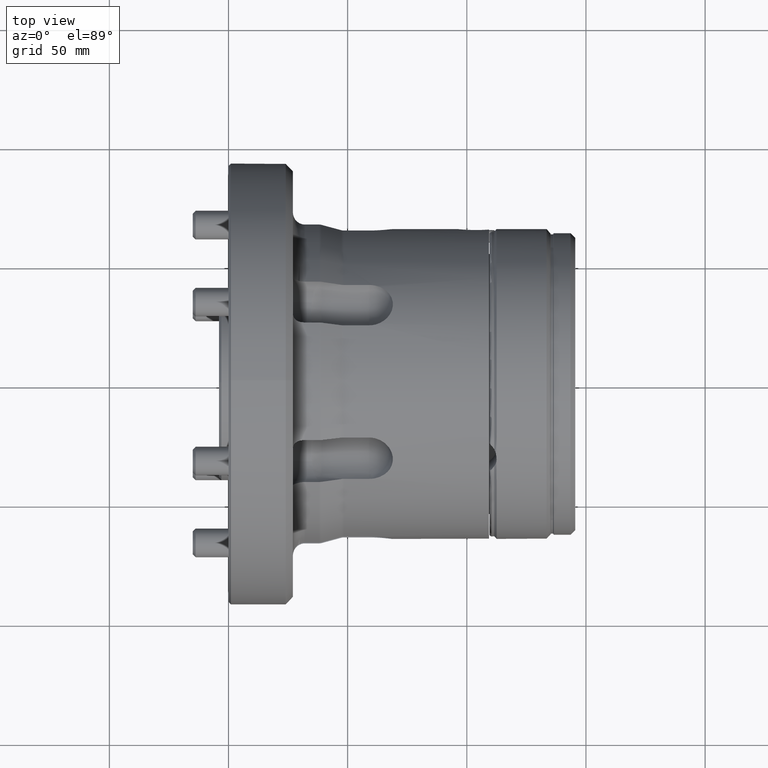
[diagram: clean part render]
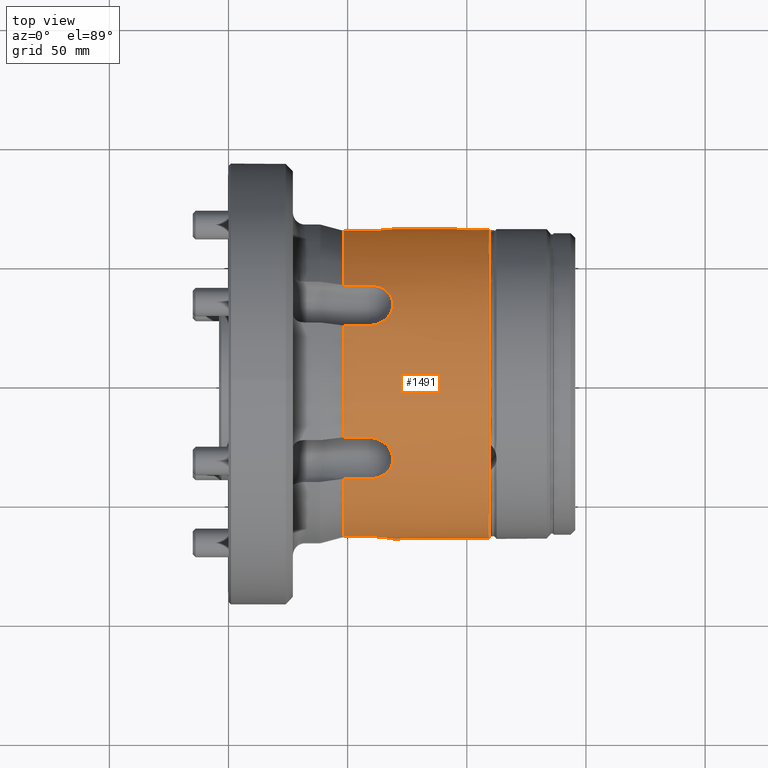
[diagram: same view with one face highlighted and labeled with its STEP entity id]
A machine part, top view. The second image highlights one B-rep face of the part: STEP entity #1491.
In plain terms, the highlighted cylindrical surface (bore or boss wall) has radius 65 mm, axis along (-1, -0, -0).
Its self-contained STEP definition (entity closure, byte-faithful):
#30 = CARTESIAN_POINT ( 'NONE',  ( 68.46673123854780840, -35.22863532441204626, 54.62880162473060608 ) ) ;
#40 = CARTESIAN_POINT ( 'NONE',  ( 96.64563253241986729, 64.89220520660516911, -3.759045072460699632 ) ) ;
#57 = LINE ( 'NONE', #2471, #1069 ) ;
#60 = CARTESIAN_POINT ( 'NONE',  ( 48.22508451168435784, -23.55354716522348113, -60.58242662633772113 ) ) ;
#66 = CARTESIAN_POINT ( 'NONE',  ( 62.21223775799929001, -40.29238092158717421, 51.00574314181611868 ) ) ;
#75 = CARTESIAN_POINT ( 'NONE',  ( 103.5111300385479325, 64.47499885865750002, -8.244667661512012913 ) ) ;
#125 = VERTEX_POINT ( 'NONE', #6771 ) ;
#129 = CARTESIAN_POINT ( 'NONE',  ( 59.65736766659580326, -40.68914689870398860, -50.68918350748695900 ) ) ;
#131 = CARTESIAN_POINT ( 'NONE',  ( 63.41394487982361738, -64.38819753321324413, 8.900664053594999459 ) ) ;
#176 = CARTESIAN_POINT ( 'NONE',  ( 67.63669956453722421, -36.71106175595033960, -53.64121753617897070 ) ) ;
#177 = CARTESIAN_POINT ( 'NONE',  ( 65.08023314348233157, 39.08348661089601705, -51.93852370329219781 ) ) ;
#178 = CARTESIAN_POINT ( 'NONE',  ( 68.71728005003491546, -64.96127369140641861, 2.266295681143389196 ) ) ;
#181 = CARTESIAN_POINT ( 'NONE',  ( 59.00000000000001421, 64.24269406392694748, 9.893243118850675089 ) ) ;
#207 = CARTESIAN_POINT ( 'NONE',  ( 68.46673123854780840, -29.69561232311103183, -57.82329394396411715 ) ) ;
#209 = CARTESIAN_POINT ( 'NONE',  ( 66.92883069469651502, -64.72013312958506503, -6.049300496260029192 ) ) ;
#212 = CARTESIAN_POINT ( 'NONE',  ( 59.00000000000001421, -40.68914689870326384, 50.68918350748751322 ) ) ;
#214 = EDGE_CURVE ( 'NONE', #7549, #3518, #7249, .T. ) ;
#219 = CARTESIAN_POINT ( 'NONE',  ( 59.65736766659581747, 64.24269406392696169, -9.893243118850673312 ) ) ;
#245 = CARTESIAN_POINT ( 'NONE',  ( 62.21223775799928291, -24.02607883892278906, -60.39709702796209712 ) ) ;
#252 = CARTESIAN_POINT ( 'NONE',  ( 67.63669956453723842, 64.81018795423349843, -4.972103312462566649 ) ) ;
#286 = CARTESIAN_POINT ( 'NONE',  ( 49.00000000000000711, 64.24269406392694748, -9.893243118850675089 ) ) ;
#292 = CARTESIAN_POINT ( 'NONE',  ( 68.65574458489963661, 64.95210880938056164, 2.574995882156009941 ) ) ;
#332 = CARTESIAN_POINT ( 'NONE',  ( 63.11580429483066013, 64.37092184377949877, 9.022187618689404331 ) ) ;
#409 = VECTOR ( 'NONE', #2693, 1000.000000000000000 ) ;
#450 = CARTESIAN_POINT ( 'NONE',  ( 109.3000000000000114, 0.0000000000000000000, 0.0000000000000000000 ) ) ;
#458 = EDGE_CURVE ( 'NONE', #1035, #6021, #5547, .T. ) ;
#479 = CARTESIAN_POINT ( 'NONE',  ( 68.97489981005446680, 31.93052054282873087, -56.62034041198526779 ) ) ;
#502 = B_SPLINE_CURVE_WITH_KNOTS ( 'NONE', 3,
 ( #5366, #7818, #2371, #4759, #7208, #1790, #4167, #6598, #1194, #3574, #6007, #588, #2976, #5406, #7854, #2405, #4798, #7250, #1829, #4206, #6639, #1232, #3607, #6044, #629, #3016, #5446, #30, #2448, #4843, #7285, #1865, #4245, #6677, #1275, #3647, #6084, #675, #3061, #5492, #66, #2480, #4880, #7325, #1903 ),
 .UNSPECIFIED., .F., .F.,
 ( 4, 2, 2, 2, 2, 2, 2, 2, 1, 2, 2, 2, 2, 2, 2, 2, 2, 2, 2, 2, 2, 2, 4 ),
 ( 1.971623596299978614E-07, 0.001944322876846590626, 0.002916385734090080461, 0.003888448591333569862, 0.005832574305820511368, 0.007776700020307452874, 0.009720825734794394379, 0.01069288859203786080, 0.01166495144928132548, 0.01263701430652479363, 0.01360907716376826004, 0.01555320287825521022, 0.01652526573549866970, 0.01749732859274212918, 0.01944145430722905160, 0.02041351716447251455, 0.02138558002171597749, 0.02332970573620291380, 0.02527383145068985704, 0.02624589430793334080, 0.02721795716517683150, 0.02916208287966373311, 0.03110620859415063125 ),
 .UNSPECIFIED. ) ;
#515 = CARTESIAN_POINT ( 'NONE',  ( 65.06961659763658190, 25.43077627880670732, -59.81976931337305103 ) ) ;
#566 = CARTESIAN_POINT ( 'NONE',  ( 105.4635260554162244, 64.48977235927469565, 8.128461432282648502 ) ) ;
#582 = CARTESIAN_POINT ( 'NONE',  ( 48.22508451168435784, 40.68914689870363333, -50.68918350748725032 ) ) ;
#588 = CARTESIAN_POINT ( 'NONE',  ( 66.50440227982637964, -26.65302962617077043, 59.28596243187008952 ) ) ;
#599 = CARTESIAN_POINT ( 'NONE',  ( 98.26636466960044913, 64.72810096608738206, 5.944700541047105879 ) ) ;
#618 = EDGE_CURVE ( 'NONE', #1128, #6720, #5082, .T. ) ;
#629 = CARTESIAN_POINT ( 'NONE',  ( 68.89582400938070350, -33.61415995071007501, 55.63447366400265537 ) ) ;
#640 = CARTESIAN_POINT ( 'NONE',  ( 95.96965243581777827, 64.97239724917686488, -1.930489556062061851 ) ) ;
#673 = VECTOR ( 'NONE', #3872, 1000.000000000000000 ) ;
#675 = CARTESIAN_POINT ( 'NONE',  ( 63.99118382509233527, -39.64480229942511613, 51.51032223774080165 ) ) ;
#683 = VECTOR ( 'NONE', #1904, 1000.000000000000000 ) ;
#685 = CARTESIAN_POINT ( 'NONE',  ( 101.2132907289481665, 64.53063381459492120, -7.804395639396867423 ) ) ;
#690 = EDGE_LOOP ( 'NONE', ( #3906, #3930 ) ) ;
#712 = CARTESIAN_POINT ( 'NONE',  ( 59.00000000000001421, 64.24269406392694748, -9.893243118850675089 ) ) ;
#719 = CARTESIAN_POINT ( 'NONE',  ( 48.22508451168435784, 0.0000000000000000000, 0.0000000000000000000 ) ) ;
#720 = CARTESIAN_POINT ( 'NONE',  ( 108.9987305425598834, 64.66710642170700396, -6.574932594090044269 ) ) ;
#731 = EDGE_LOOP ( 'NONE', ( #3276, #3310, #3339, #3347, #3358, #3368, #3389, #3399, #3411, #3423, #3444, #3466, #3472, #3501, #3526, #3543, #3569, #3581, #3641, #3653, #3755, #3784, #3848, #3858 ) ) ;
#736 = CARTESIAN_POINT ( 'NONE',  ( 61.57308175620754298, -64.29233641987430303, 9.565790955121123318 ) ) ;
#769 = EDGE_CURVE ( 'NONE', #125, #1737, #3886, .T. ) ;
#772 = CARTESIAN_POINT ( 'NONE',  ( 66.50440227982636543, -38.01663474072373106, -52.72518196001837509 ) ) ;
#773 = CARTESIAN_POINT ( 'NONE',  ( 63.41405891017797103, 39.88807841670730170, -51.32216720501003948 ) ) ;
#774 = CARTESIAN_POINT ( 'NONE',  ( 68.33532271160474636, -64.90580392480578098, 3.510835767199113278 ) ) ;
#778 = VERTEX_POINT ( 'NONE', #3865 ) ;
#814 = CARTESIAN_POINT ( 'NONE',  ( 68.89582400938070350, -31.37378754384732105, -56.92795327618985368 ) ) ;
#815 = CARTESIAN_POINT ( 'NONE',  ( 68.84728663376772317, 33.89191091364965303, -55.46566627442530262 ) ) ;
#816 = CARTESIAN_POINT ( 'NONE',  ( 67.94888035252709813, -64.85196740066564303, -4.393751559145941066 ) ) ;
#845 = CARTESIAN_POINT ( 'NONE',  ( 63.99118382509233527, -24.78684646529319124, -60.08856703818438660 ) ) ;
#846 = CARTESIAN_POINT ( 'NONE',  ( 60.31550699776791191, -64.25276451602412919, -9.828449309156413349 ) ) ;
#857 = CARTESIAN_POINT ( 'NONE',  ( 66.50440227982636543, 64.66966436689480702, -6.560780471851299644 ) ) ;
#867 = LINE ( 'NONE', #3253, #3630 ) ;
#893 = CARTESIAN_POINT ( 'NONE',  ( 68.96007476072135489, 64.99765644748399041, 0.6411438195665333240 ) ) ;
#902 = VERTEX_POINT ( 'NONE', #3536 ) ;
#908 = LINE ( 'NONE', #3295, #2276 ) ;
#918 = AXIS2_PLACEMENT_3D ( 'NONE', #1410, #1398, #1387 ) ;
#939 = CARTESIAN_POINT ( 'NONE',  ( 64.27033548075797853, 64.45352781201887638, 8.412790566791175095 ) ) ;
#953 = DIRECTION ( 'NONE',  ( 0.0000000000000000000, 0.0000000000000000000, 1.000000000000000000 ) ) ;
#964 = DIRECTION ( 'NONE',  ( -1.000000000000000000, -0.0000000000000000000, -0.0000000000000000000 ) ) ;
#971 = CARTESIAN_POINT ( 'NONE',  ( 0.0000000000000000000, 0.0000000000000000000, 0.0000000000000000000 ) ) ;
#979 = CYLINDRICAL_SURFACE ( 'NONE', #2194, 65.00000000000000000 ) ;
#982 = FACE_OUTER_BOUND ( 'NONE', #690, .T. ) ;
#988 = FACE_OUTER_BOUND ( 'NONE', #731, .T. ) ;
#1006 = CIRCLE ( 'NONE', #5421, 65.00000000000000000 ) ;
#1035 = VERTEX_POINT ( 'NONE', #3275 ) ;
#1061 = VECTOR ( 'NONE', #1754, 1000.000000000000000 ) ;
#1069 = VECTOR ( 'NONE', #4869, 1000.000000000000000 ) ;
#1097 = CARTESIAN_POINT ( 'NONE',  ( 48.22508451168435784, 40.68914689870434387, 50.68918350748667478 ) ) ;
#1122 = CARTESIAN_POINT ( 'NONE',  ( 66.91797617654580677, 27.10794172047150496, -59.08005991271858193 ) ) ;
#1128 = VERTEX_POINT ( 'NONE', #2511 ) ;
#1137 = CARTESIAN_POINT ( 'NONE',  ( 59.00000000000001421, -64.24269406392694748, 9.893243118850675089 ) ) ;
#1164 = CARTESIAN_POINT ( 'NONE',  ( 106.9662316249395531, 64.54152651248084283, 7.708205984019353529 ) ) ;
#1194 = CARTESIAN_POINT ( 'NONE',  ( 63.98620588425183087, -24.76768970362120115, 60.09734378151021872 ) ) ;
#1205 = CARTESIAN_POINT ( 'NONE',  ( 99.81934832659638346, 64.60889526454616316, 7.122954833727360047 ) ) ;
#1232 = CARTESIAN_POINT ( 'NONE',  ( 68.97489981005446680, -31.93052054282832941, 56.62034041198548096 ) ) ;
#1241 = CARTESIAN_POINT ( 'NONE',  ( 95.74964363085314289, 65.00004523144957602, -0.3819330405485822366 ) ) ;
#1275 = CARTESIAN_POINT ( 'NONE',  ( 65.58369074559914225, -38.75527925615264024, 52.18469942478206747 ) ) ;
#1283 = CARTESIAN_POINT ( 'NONE',  ( 99.15602684318761817, 64.65521208906687889, -6.689495352922332216 ) ) ;
#1330 = CARTESIAN_POINT ( 'NONE',  ( 107.6665159727782850, 64.57750852762833915, -7.400677022700478780 ) ) ;
#1348 = CARTESIAN_POINT ( 'NONE',  ( 59.65736766659581747, -64.24269406392696169, 9.893243118850673312 ) ) ;
#1357 = EDGE_CURVE ( 'NONE', #6720, #2144, #1772, .T. ) ;
#1381 = CARTESIAN_POINT ( 'NONE',  ( 63.98620588425181666, -39.66198156294375821, -51.49812036714151731 ) ) ;
#1382 = CARTESIAN_POINT ( 'NONE',  ( 61.59191015603111907, 40.43930686144677367, -50.88888507660636407 ) ) ;
#1383 = CARTESIAN_POINT ( 'NONE',  ( 67.63669956453723842, -64.81018795423349843, 4.972103312462566649 ) ) ;
#1387 = DIRECTION ( 'NONE',  ( 0.0000000000000000000, 0.0000000000000000000, 1.000000000000000000 ) ) ;
#1398 = DIRECTION ( 'NONE',  ( -1.000000000000000000, -0.0000000000000000000, -0.0000000000000000000 ) ) ;
#1403 = EDGE_CURVE ( 'NONE', #6753, #1711, #2304, .T. ) ;
#1410 = CARTESIAN_POINT ( 'NONE',  ( 48.22508451168435784, 0.0000000000000000000, 0.0000000000000000000 ) ) ;
#1419 = CARTESIAN_POINT ( 'NONE',  ( 68.97489981005442417, -33.06939289628767398, -55.96281215214310834 ) ) ;
#1420 = CARTESIAN_POINT ( 'NONE',  ( 68.09065440962528726, 35.98327840764938657, -54.13219331859035321 ) ) ;
#1421 = CARTESIAN_POINT ( 'NONE',  ( 68.65574458489963661, -64.95210880938056164, -2.574995882156009941 ) ) ;
#1442 = CARTESIAN_POINT ( 'NONE',  ( 59.00000000000001421, -64.24269406392694748, -9.893243118850675089 ) ) ;
#1459 = CARTESIAN_POINT ( 'NONE',  ( 48.22508451168435784, -23.55354716522263558, 60.58242662633805509 ) ) ;
#1460 = CARTESIAN_POINT ( 'NONE',  ( 65.58369074559912804, -25.81563576263987159, -59.65540607897940362 ) ) ;
#1461 = CARTESIAN_POINT ( 'NONE',  ( 63.11580429483066013, -64.37092184377949877, -9.022187618689404331 ) ) ;
#1467 = CARTESIAN_POINT ( 'NONE',  ( 63.98620588425183087, 64.42967126656529331, -8.599223414368282192 ) ) ;
#1483 = VERTEX_POINT ( 'NONE', #1137 ) ;
#1491 = ADVANCED_FACE ( 'NONE', ( #988, #982 ), #979, .T. ) ;
#1497 = CARTESIAN_POINT ( 'NONE',  ( 68.91097228024506194, 64.99011185281403868, -1.303097945448076889 ) ) ;
#1536 = CARTESIAN_POINT ( 'NONE',  ( 66.51481987590584311, 64.67082014766347697, 6.549774477475294177 ) ) ;
#1549 = CARTESIAN_POINT ( 'NONE',  ( 49.00000000000000711, -40.68914689870396728, -50.68918350748695190 ) ) ;
#1581 = DIRECTION ( 'NONE',  ( 1.000000000000000000, -0.0000000000000000000, 0.0000000000000000000 ) ) ;
#1629 = VERTEX_POINT ( 'NONE', #212 ) ;
#1641 = VERTEX_POINT ( 'NONE', #181 ) ;
#1643 = VECTOR ( 'NONE', #1581, 1000.000000000000000 ) ;
#1711 = VERTEX_POINT ( 'NONE', #5073 ) ;
#1725 = CARTESIAN_POINT ( 'NONE',  ( 67.94577678334357529, 28.61532396803437450, -58.36304916826493638 ) ) ;
#1737 = VERTEX_POINT ( 'NONE', #2207 ) ;
#1754 = DIRECTION ( 'NONE',  ( -1.000000000000000000, 0.0000000000000000000, -0.0000000000000000000 ) ) ;
#1759 = CARTESIAN_POINT ( 'NONE',  ( 61.25774261777939955, 23.78901311887291214, -60.49038607993566075 ) ) ;
#1762 = CARTESIAN_POINT ( 'NONE',  ( 109.3000000000000114, 64.69178850518821378, 6.322380880649324020 ) ) ;
#1766 = CARTESIAN_POINT ( 'NONE',  ( 49.00000000000000711, 23.55354716522390390, 60.58242662633755060 ) ) ;
#1772 = LINE ( 'NONE', #1766, #1061 ) ;
#1790 = CARTESIAN_POINT ( 'NONE',  ( 62.19836298140091913, -24.03714762665542892, 60.39225457703783917 ) ) ;
#1800 = LINE ( 'NONE', #4180, #2143 ) ;
#1801 = CARTESIAN_POINT ( 'NONE',  ( 101.2283847577835445, 64.53276998607843495, 7.780410865472194182 ) ) ;
#1829 = CARTESIAN_POINT ( 'NONE',  ( 68.63643386325357199, -30.23611273858649184, 57.54019666087459939 ) ) ;
#1843 = CARTESIAN_POINT ( 'NONE',  ( 95.88843881038555139, 64.98255099181781702, 1.554459076210388035 ) ) ;
#1865 = CARTESIAN_POINT ( 'NONE',  ( 67.47145547738993798, -36.93651640627602717, 53.48613065992171300 ) ) ;
#1872 = CARTESIAN_POINT ( 'NONE',  ( 59.00000000000001421, 23.55354716522390390, 60.58242662633755060 ) ) ;
#1874 = CARTESIAN_POINT ( 'NONE',  ( 97.98609172158090530, 64.75369306091425869, -5.661076971302386518 ) ) ;
#1903 = CARTESIAN_POINT ( 'NONE',  ( 59.00000000000001421, -40.68914689870326384, 50.68918350748751322 ) ) ;
#1904 = DIRECTION ( 'NONE',  ( -1.000000000000000000, 0.0000000000000000000, 0.0000000000000000000 ) ) ;
#1908 = CARTESIAN_POINT ( 'NONE',  ( 48.22508451168435784, -64.24269406392696169, 9.893243118850678641 ) ) ;
#1909 = CARTESIAN_POINT ( 'NONE',  ( 105.8382525775383272, 64.49942468025807329, -8.052038696147144847 ) ) ;
#1963 = CARTESIAN_POINT ( 'NONE',  ( 59.00000000000001421, -23.55354716522347402, -60.58242662633771403 ) ) ;
#1968 = CARTESIAN_POINT ( 'NONE',  ( 62.19836298140091913, -40.28265284220385212, -51.01290776771955393 ) ) ;
#1969 = CARTESIAN_POINT ( 'NONE',  ( 59.00000000000001421, 40.68914689870362622, -50.68918350748724322 ) ) ;
#1971 = CARTESIAN_POINT ( 'NONE',  ( 66.50440227982636543, -64.66966436689480702, 6.560780471851299644 ) ) ;
#1988 = DIRECTION ( 'NONE',  ( -1.000000000000000000, 0.0000000000000000000, 0.0000000000000000000 ) ) ;
#2000 = CARTESIAN_POINT ( 'NONE',  ( 68.63643386325358620, -34.71321567777644646, -54.95534007374363483 ) ) ;
#2001 = CARTESIAN_POINT ( 'NONE',  ( 67.47145547738993798, 36.93651640627639665, -53.48613065992145010 ) ) ;
#2002 = CARTESIAN_POINT ( 'NONE',  ( 68.96007476072135489, -64.99765644748399041, -0.6411438195665333240 ) ) ;
#2036 = DIRECTION ( 'NONE',  ( -1.000000000000000000, -0.0000000000000000000, -0.0000000000000000000 ) ) ;
#2037 = CARTESIAN_POINT ( 'NONE',  ( 67.47145547738993798, -27.85208969848766003, -58.73102686509675152 ) ) ;
#2038 = CARTESIAN_POINT ( 'NONE',  ( 64.27033548075797853, -64.45352781201887638, -8.412790566791175095 ) ) ;
#2048 = CARTESIAN_POINT ( 'NONE',  ( 62.19836298140090491, 64.31980046885958302, -9.379346809317894440 ) ) ;
#2084 = CARTESIAN_POINT ( 'NONE',  ( 59.00000000000001421, -23.55354716522347402, -60.58242662633771403 ) ) ;
#2091 = CARTESIAN_POINT ( 'NONE',  ( 68.44560733749149506, 64.92161639485036062, -3.206317200860421934 ) ) ;
#2103 = VERTEX_POINT ( 'NONE', #7513 ) ;
#2126 = CARTESIAN_POINT ( 'NONE',  ( 67.63940908486428327, 64.81054373074016439, 4.967509418845142299 ) ) ;
#2143 = VECTOR ( 'NONE', #6612, 1000.000000000000000 ) ;
#2144 = VERTEX_POINT ( 'NONE', #2792 ) ;
#2165 = CARTESIAN_POINT ( 'NONE',  ( 59.65737357469058821, 64.24269406392694748, 9.893243118850673312 ) ) ;
#2194 = AXIS2_PLACEMENT_3D ( 'NONE', #971, #964, #953 ) ;
#2207 = CARTESIAN_POINT ( 'NONE',  ( 59.00000000000001421, 23.55354716522305125, -60.58242662633787745 ) ) ;
#2208 = EDGE_CURVE ( 'NONE', #1737, #1035, #3920, .T. ) ;
#2276 = VECTOR ( 'NONE', #5732, 1000.000000000000000 ) ;
#2303 = CARTESIAN_POINT ( 'NONE',  ( 59.65736766659579615, 23.55354716522305480, -60.58242662633787745 ) ) ;
#2304 = CIRCLE ( 'NONE', #918, 65.00000000000000000 ) ;
#2323 = VERTEX_POINT ( 'NONE', #4429 ) ;
#2346 = CARTESIAN_POINT ( 'NONE',  ( 62.50926512417663616, 24.13993234231895713, -60.35129755896742410 ) ) ;
#2371 = CARTESIAN_POINT ( 'NONE',  ( 60.30380638227085655, -23.61340797102282707, 60.55925013631156872 ) ) ;
#2380 = CARTESIAN_POINT ( 'NONE',  ( 103.1270262955401478, 64.47908484597142831, 8.212866215661488667 ) ) ;
#2405 = CARTESIAN_POINT ( 'NONE',  ( 67.94577678334357529, -28.61532396803396949, 58.36304916826514244 ) ) ;
#2417 = CARTESIAN_POINT ( 'NONE',  ( 96.62203132733623079, 64.89373166331969855, 3.773925508976124998 ) ) ;
#2447 = CARTESIAN_POINT ( 'NONE',  ( 48.22508451168435784, 0.0000000000000000000, 0.0000000000000000000 ) ) ;
#2448 = CARTESIAN_POINT ( 'NONE',  ( 68.09065440962531568, -35.98327840764903129, 54.13219331859060190 ) ) ;
#2458 = CARTESIAN_POINT ( 'NONE',  ( 96.83125116509110342, 64.87130038087039452, -4.101458451329910382 ) ) ;
#2471 = CARTESIAN_POINT ( 'NONE',  ( 49.00000000000000711, -64.24269406392694748, 9.893243118850675089 ) ) ;
#2472 = CARTESIAN_POINT ( 'NONE',  ( 48.22508451168435784, 0.0000000000000000000, 0.0000000000000000000 ) ) ;
#2480 = CARTESIAN_POINT ( 'NONE',  ( 61.59191015603113328, -40.43930686144643261, 50.88888507660666249 ) ) ;
#2487 = CARTESIAN_POINT ( 'NONE',  ( 104.2883465605435447, 64.47379023854311697, -8.254113819727399104 ) ) ;
#2511 = CARTESIAN_POINT ( 'NONE',  ( 59.00000000000001421, 40.68914689870434387, 50.68918350748667478 ) ) ;
#2523 = DIRECTION ( 'NONE',  ( -1.000000000000000000, -0.0000000000000000000, -0.0000000000000000000 ) ) ;
#2544 = CARTESIAN_POINT ( 'NONE',  ( 60.30380638227083523, -40.63914506667039461, -50.72943624098768822 ) ) ;
#2547 = CARTESIAN_POINT ( 'NONE',  ( 63.98620588425183087, -64.42967126656529331, 8.599223414368282192 ) ) ;
#2580 = CARTESIAN_POINT ( 'NONE',  ( 67.94577678334357529, -36.23622123802064010, -53.96312207797189586 ) ) ;
#2581 = CARTESIAN_POINT ( 'NONE',  ( 65.58369074559914225, 38.75527925615298841, -52.18469942478180457 ) ) ;
#2582 = CARTESIAN_POINT ( 'NONE',  ( 68.91097228024506194, -64.99011185281403868, 1.303097945448076889 ) ) ;
#2612 = CARTESIAN_POINT ( 'NONE',  ( 68.09065440962532989, -28.88821537264493955, -58.22852987176755590 ) ) ;
#2613 = CARTESIAN_POINT ( 'NONE',  ( 66.51481987590584311, -64.67082014766347697, -6.549774477475294177 ) ) ;
#2622 = CARTESIAN_POINT ( 'NONE',  ( 60.30380638227082812, 64.25255303769353077, -9.829813895323466610 ) ) ;
#2647 = CARTESIAN_POINT ( 'NONE',  ( 61.59191015603113328, -23.85141381588467269, -60.46590959175038904 ) ) ;
#2657 = CARTESIAN_POINT ( 'NONE',  ( 67.94577678334358950, 64.85154520605490802, -4.399927090292832688 ) ) ;
#2693 = DIRECTION ( 'NONE',  ( 1.000000000000000000, 0.0000000000000000000, 0.0000000000000000000 ) ) ;
#2698 = CARTESIAN_POINT ( 'NONE',  ( 68.46673123854780840, 64.92424764752331612, 3.194492319233967592 ) ) ;
#2714 = EDGE_CURVE ( 'NONE', #2864, #2323, #3449, .T. ) ;
#2733 = CARTESIAN_POINT ( 'NONE',  ( 62.21223775799928291, 64.31845976051015157, 9.391353886146488250 ) ) ;
#2753 = AXIS2_PLACEMENT_3D ( 'NONE', #2472, #4870, #7314 ) ;
#2791 = AXIS2_PLACEMENT_3D ( 'NONE', #6534, #6522, #6513 ) ;
#2792 = CARTESIAN_POINT ( 'NONE',  ( 48.22508451168435784, 23.55354716522390390, 60.58242662633754350 ) ) ;
#2818 = VERTEX_POINT ( 'NONE', #1442 ) ;
#2837 = DIRECTION ( 'NONE',  ( -1.000000000000000000, -0.0000000000000000000, -0.0000000000000000000 ) ) ;
#2864 = VERTEX_POINT ( 'NONE', #3254 ) ;
#2906 = CARTESIAN_POINT ( 'NONE',  ( 63.98620588425184508, 24.76768970362161326, -60.09734378151006240 ) ) ;
#2947 = CARTESIAN_POINT ( 'NONE',  ( 104.6922644480614224, 64.47688004627886471, 8.230101075013523726 ) ) ;
#2976 = CARTESIAN_POINT ( 'NONE',  ( 66.91797617654579255, -27.10794172047109640, 59.08005991271878088 ) ) ;
#2987 = CARTESIAN_POINT ( 'NONE',  ( 97.99378067397420011, 64.75298348389966918, 5.669072151051521402 ) ) ;
#3009 = CARTESIAN_POINT ( 'NONE',  ( 48.22508451168435784, 64.24269406392696169, 9.893243118850678641 ) ) ;
#3016 = CARTESIAN_POINT ( 'NONE',  ( 68.84728663376769475, -33.89191091364925512, 55.46566627442551578 ) ) ;
#3027 = CARTESIAN_POINT ( 'NONE',  ( 96.18647019090279571, 64.94595576616706012, -2.676195779456556068 ) ) ;
#3061 = CARTESIAN_POINT ( 'NONE',  ( 63.41405891017794261, -39.88807841670692511, 51.32216720501029528 ) ) ;
#3066 = CARTESIAN_POINT ( 'NONE',  ( 101.9554376098558492, 64.50205643069854489, -8.031160337943987315 ) ) ;
#3073 = B_SPLINE_CURVE_WITH_KNOTS ( 'NONE', 3,
 ( #5553, #129, #2544, #4955, #7397, #1968, #4348, #6778, #1381, #3758, #6185, #772, #3160, #5600, #176, #2580, #4991, #7433, #2000, #4387, #6821, #1419, #3797, #6228, #814, #3201, #5631, #207, #2612, #5023, #7473, #2037, #4425, #6864, #1460, #3833, #6263, #845, #3233, #5666, #245, #2647, #5064, #7516, #2084 ),
 .UNSPECIFIED., .F., .F.,
 ( 4, 2, 2, 2, 2, 2, 2, 2, 1, 2, 2, 2, 2, 2, 2, 2, 2, 2, 2, 2, 2, 2, 4 ),
 ( 1.971623596295295052E-07, 0.001944322876846622502, 0.002916385734090109951, 0.003888448591333598051, 0.005832574305820535654, 0.007776700020307473690, 0.009720825734794411727, 0.01069288859203787814, 0.01166495144928134456, 0.01263701430652481097, 0.01360907716376827913, 0.01555320287825523104, 0.01652526573549870439, 0.01749732859274217428, 0.01944145430722911058, 0.02041351716447257700, 0.02138558002171603994, 0.02332970573620297278, 0.02527383145068990561, 0.02624589430793338937, 0.02721795716517687314, 0.02916208287966375393, 0.03110620859415063819 ),
 .UNSPECIFIED. ) ;
#3103 = CARTESIAN_POINT ( 'NONE',  ( 109.3000000000000114, 64.69178850518821378, -6.322380880649324020 ) ) ;
#3123 = CARTESIAN_POINT ( 'NONE',  ( 62.19836298140090491, -64.31980046885958302, 9.379346809317894440 ) ) ;
#3141 = LINE ( 'NONE', #7419, #4836 ) ;
#3160 = CARTESIAN_POINT ( 'NONE',  ( 66.91797617654580677, -37.61086188128530949, -53.01619613059557423 ) ) ;
#3161 = CARTESIAN_POINT ( 'NONE',  ( 63.99118382509233527, 39.64480229942547140, -51.51032223774051744 ) ) ;
#3163 = CARTESIAN_POINT ( 'NONE',  ( 68.44560733749149506, -64.92161639485036062, 3.206317200860421934 ) ) ;
#3198 = EDGE_CURVE ( 'NONE', #5056, #2144, #5840, .T. ) ;
#3201 = CARTESIAN_POINT ( 'NONE',  ( 68.84728663376769475, -31.08872057465738692, -57.08408897123222658 ) ) ;
#3202 = CARTESIAN_POINT ( 'NONE',  ( 68.89582400938074613, 33.61415995071045160, -55.63447366400244931 ) ) ;
#3203 = CARTESIAN_POINT ( 'NONE',  ( 67.63940908486428327, -64.81054373074016439, -4.967509418845142299 ) ) ;
#3233 = CARTESIAN_POINT ( 'NONE',  ( 63.41405891017794261, -24.50226136845777702, -60.20517281951922683 ) ) ;
#3235 = CARTESIAN_POINT ( 'NONE',  ( 59.65737357469058821, -64.24269406392694748, -9.893243118850673312 ) ) ;
#3247 = CARTESIAN_POINT ( 'NONE',  ( 66.91797617654579255, 64.71880360175669011, -6.063863782122775881 ) ) ;
#3252 = VECTOR ( 'NONE', #3934, 1000.000000000000000 ) ;
#3253 = CARTESIAN_POINT ( 'NONE',  ( 49.00000000000000711, -64.24269406392694748, -9.893243118850675089 ) ) ;
#3254 = CARTESIAN_POINT ( 'NONE',  ( 109.3000000000000114, 64.69178850518821378, 6.322380880649324020 ) ) ;
#3275 = CARTESIAN_POINT ( 'NONE',  ( 59.00000000000001421, 40.68914689870362622, -50.68918350748724322 ) ) ;
#3276 = ORIENTED_EDGE ( 'NONE', *, *, #7247, .F. ) ;
#3282 = CARTESIAN_POINT ( 'NONE',  ( 68.89582400938073192, 64.98794749455764475, 1.293479612187667493 ) ) ;
#3295 = CARTESIAN_POINT ( 'NONE',  ( 49.00000000000000711, -23.55354716522263203, 60.58242662633804088 ) ) ;
#3307 = AXIS2_PLACEMENT_3D ( 'NONE', #5630, #2036, #4424 ) ;
#3310 = ORIENTED_EDGE ( 'NONE', *, *, #5780, .T. ) ;
#3323 = CARTESIAN_POINT ( 'NONE',  ( 63.99118382509233527, 64.43164876471851699, 8.578244800444078777 ) ) ;
#3339 = ORIENTED_EDGE ( 'NONE', *, *, #618, .T. ) ;
#3347 = ORIENTED_EDGE ( 'NONE', *, *, #1357, .T. ) ;
#3358 = ORIENTED_EDGE ( 'NONE', *, *, #3198, .F. ) ;
#3368 = ORIENTED_EDGE ( 'NONE', *, *, #6961, .T. ) ;
#3389 = ORIENTED_EDGE ( 'NONE', *, *, #5538, .T. ) ;
#3399 = ORIENTED_EDGE ( 'NONE', *, *, #5381, .T. ) ;
#3411 = ORIENTED_EDGE ( 'NONE', *, *, #1403, .F. ) ;
#3420 = AXIS2_PLACEMENT_3D ( 'NONE', #2447, #4842, #7284 ) ;
#3423 = ORIENTED_EDGE ( 'NONE', *, *, #4894, .T. ) ;
#3444 = ORIENTED_EDGE ( 'NONE', *, *, #3651, .T. ) ;
#3449 = B_SPLINE_CURVE_WITH_KNOTS ( 'NONE', 3,
 ( #1762, #4140, #6567, #1164, #3548, #5981, #566, #2947, #5375, #7826, #2380, #4772, #7222, #1801, #4181, #6614, #1205, #3584, #6017, #599, #2987, #5419, #3500, #2417, #4812, #7262, #1843, #4215, #6648, #1241, #3615, #6054, #640, #3027, #5461, #40, #2458, #4855, #7294, #1874, #4253, #6686, #1283, #3658, #6096, #685, #3066, #5500, #75, #2487, #4888, #7332, #1909, #4294, #6726, #1330, #3704, #6131, #720, #3103 ),
 .UNSPECIFIED., .F., .F.,
 ( 4, 2, 2, 2, 2, 2, 2, 2, 2, 2, 2, 2, 2, 2, 2, 2, 2, 2, 2, 2, 2, 2, 2, 2, 2, 2, 2, 2, 2, 4 ),
 ( 0.0000000000000000000, 0.002329987100547659118, 0.003494980650821508193, 0.004659974201095358134, 0.005824967751369207643, 0.006989961301643055416, 0.008154954851916905792, 0.009319948402190754433, 0.01048494195246460307, 0.01164993550273845171, 0.01281492905301230036, 0.01397992260328614726, 0.01630990970383386710, 0.01747490325410773482, 0.01863989680438159907, 0.01980489035465546679, 0.02096988390492933452, 0.02213487745520320224, 0.02329987100547706996, 0.02446486455575093769, 0.02562985810602480194, 0.02679485165629866966, 0.02795984520657253392, 0.03028983230712027283, 0.03145482585739414055, 0.03261981940766800481, 0.03378481295794187600, 0.03494980650821574025, 0.03611480005848961145, 0.03727979360876348264 ),
 .UNSPECIFIED. ) ;
#3466 = ORIENTED_EDGE ( 'NONE', *, *, #6946, .T. ) ;
#3472 = ORIENTED_EDGE ( 'NONE', *, *, #214, .F. ) ;
#3500 = CARTESIAN_POINT ( 'NONE',  ( 97.25409193041849676, 64.82592766437888088, 4.765378598525220610 ) ) ;
#3501 = ORIENTED_EDGE ( 'NONE', *, *, #6996, .T. ) ;
#3505 = CARTESIAN_POINT ( 'NONE',  ( 66.50440227982637964, 26.65302962617117899, -59.28596243186989057 ) ) ;
#3518 = VERTEX_POINT ( 'NONE', #7239 ) ;
#3526 = ORIENTED_EDGE ( 'NONE', *, *, #7339, .T. ) ;
#3536 = CARTESIAN_POINT ( 'NONE',  ( 48.22508451168435784, 64.24269406392696169, -9.893243118850678641 ) ) ;
#3543 = ORIENTED_EDGE ( 'NONE', *, *, #4365, .T. ) ;
#3548 = CARTESIAN_POINT ( 'NONE',  ( 106.5937625404025368, 64.52538004698294571, 7.841330171982753505 ) ) ;
#3569 = ORIENTED_EDGE ( 'NONE', *, *, #6790, .F. ) ;
#3574 = CARTESIAN_POINT ( 'NONE',  ( 65.06961659763662453, -25.43077627880630587, 59.81976931337325709 ) ) ;
#3581 = ORIENTED_EDGE ( 'NONE', *, *, #769, .T. ) ;
#3584 = CARTESIAN_POINT ( 'NONE',  ( 99.16660306639953149, 64.65441380763191148, 6.697208975380253726 ) ) ;
#3607 = CARTESIAN_POINT ( 'NONE',  ( 68.97574932753634869, -32.77355016812499144, 56.13376597025776960 ) ) ;
#3615 = CARTESIAN_POINT ( 'NONE',  ( 95.77736882201003255, 64.99650892378858202, -0.7768941992711396738 ) ) ;
#3630 = VECTOR ( 'NONE', #5686, 1000.000000000000000 ) ;
#3641 = ORIENTED_EDGE ( 'NONE', *, *, #2208, .T. ) ;
#3647 = CARTESIAN_POINT ( 'NONE',  ( 65.08023314348233157, -39.08348661089566178, 51.93852370329248203 ) ) ;
#3651 = EDGE_CURVE ( 'NONE', #1483, #2818, #6298, .T. ) ;
#3653 = ORIENTED_EDGE ( 'NONE', *, *, #458, .T. ) ;
#3658 = CARTESIAN_POINT ( 'NONE',  ( 99.80607942451422332, 64.60976198788992519, -7.115086382272891363 ) ) ;
#3690 = EDGE_CURVE ( 'NONE', #902, #5549, #5713, .T. ) ;
#3704 = CARTESIAN_POINT ( 'NONE',  ( 108.0139021340277594, 64.59828230984790309, -7.218395476046564063 ) ) ;
#3720 = CARTESIAN_POINT ( 'NONE',  ( 60.30380638227082812, -64.25255303769353077, 9.829813895323466610 ) ) ;
#3755 = ORIENTED_EDGE ( 'NONE', *, *, #5040, .F. ) ;
#3758 = CARTESIAN_POINT ( 'NONE',  ( 65.06961659763659611, -39.09005173450264436, -51.93358295209175424 ) ) ;
#3759 = CARTESIAN_POINT ( 'NONE',  ( 62.21223775799929712, 40.29238092158755080, -51.00574314181582025 ) ) ;
#3760 = CARTESIAN_POINT ( 'NONE',  ( 67.94577678334358950, -64.85154520605490802, 4.399927090292832688 ) ) ;
#3784 = ORIENTED_EDGE ( 'NONE', *, *, #3690, .T. ) ;
#3797 = CARTESIAN_POINT ( 'NONE',  ( 68.97574932753632027, -32.22649225627090175, -56.44961000292905595 ) ) ;
#3798 = CARTESIAN_POINT ( 'NONE',  ( 68.46673123854779419, 35.22863532441239443, -54.62880162473035028 ) ) ;
#3800 = CARTESIAN_POINT ( 'NONE',  ( 68.46673123854780840, -64.92424764752331612, -3.194492319233967592 ) ) ;
#3833 = CARTESIAN_POINT ( 'NONE',  ( 65.08023314348231736, -25.43833765666339275, -59.81655412515095094 ) ) ;
#3834 = CARTESIAN_POINT ( 'NONE',  ( 62.21223775799928291, -64.31845976051015157, -9.391353886146488250 ) ) ;
#3843 = CARTESIAN_POINT ( 'NONE',  ( 65.06961659763661032, 64.52082801330926998, -7.886186361281074753 ) ) ;
#3848 = ORIENTED_EDGE ( 'NONE', *, *, #4546, .T. ) ;
#3858 = ORIENTED_EDGE ( 'NONE', *, *, #6611, .T. ) ;
#3865 = CARTESIAN_POINT ( 'NONE',  ( 59.00000000000001421, -40.68914689870396728, -50.68918350748695190 ) ) ;
#3872 = DIRECTION ( 'NONE',  ( 1.000000000000000000, 0.0000000000000000000, -0.0000000000000000000 ) ) ;
#3880 = CARTESIAN_POINT ( 'NONE',  ( 68.97489981005448101, 64.99991343911626984, -0.6575282598419271984 ) ) ;
#3883 = CARTESIAN_POINT ( 'NONE',  ( 49.00000000000000711, 23.55354716522305125, -60.58242662633787745 ) ) ;
#3886 = LINE ( 'NONE', #3883, #673 ) ;
#3896 = VERTEX_POINT ( 'NONE', #1097 ) ;
#3906 = ORIENTED_EDGE ( 'NONE', *, *, #5232, .T. ) ;
#3920 = B_SPLINE_CURVE_WITH_KNOTS ( 'NONE', 3,
 ( #6491, #2303, #4693, #1759, #7174, #4732, #2346, #7791, #2906, #515, #5935, #3505, #1122, #6528, #4100, #1725, #5336, #7135, #5293, #4135, #7744, #479, #5685, #5508, #3202, #815, #6229, #3798, #1420, #6822, #4388, #2001, #7434, #4992, #2581, #177, #5601, #3161, #773, #6186, #3759, #1382, #6779, #4349, #1969 ),
 .UNSPECIFIED., .F., .F.,
 ( 4, 2, 2, 2, 2, 2, 2, 2, 1, 2, 2, 2, 2, 2, 2, 2, 2, 2, 2, 2, 2, 2, 4 ),
 ( 1.971623596299978614E-07, 0.001944322876846609491, 0.002916385734090086966, 0.003888448591333564658, 0.005832574305820478408, 0.007776700020307393893, 0.009720825734794309378, 0.01069288859203776192, 0.01166495144928121619, 0.01263701430652467046, 0.01360907716376812300, 0.01555320287825503849, 0.01652526573549850664, 0.01749732859274196958, 0.01944145430722891282, 0.02041351716447238618, 0.02138558002171585606, 0.02332970573620280277, 0.02527383145068974948, 0.02624589430793324366, 0.02721795716517674130, 0.02916208287966368107, 0.03110620859415061737 ),
 .UNSPECIFIED. ) ;
#3921 = CARTESIAN_POINT ( 'NONE',  ( 65.58369074559915646, 64.57091501879273210, 7.470706654197819319 ) ) ;
#3930 = ORIENTED_EDGE ( 'NONE', *, *, #2714, .T. ) ;
#3934 = DIRECTION ( 'NONE',  ( 1.000000000000000000, -0.0000000000000000000, -0.0000000000000000000 ) ) ;
#4100 = CARTESIAN_POINT ( 'NONE',  ( 67.63669956453722421, 28.09912619828328673, -58.61332084864177716 ) ) ;
#4121 = VERTEX_POINT ( 'NONE', #1963 ) ;
#4135 = CARTESIAN_POINT ( 'NONE',  ( 68.71728005003488704, 30.51796721334592633, -57.39126111952342058 ) ) ;
#4140 = CARTESIAN_POINT ( 'NONE',  ( 108.6974756110522975, 64.64242552829099964, 6.827472130560694907 ) ) ;
#4167 = CARTESIAN_POINT ( 'NONE',  ( 62.50926512417663616, -24.13993234231853791, 60.35129755896758041 ) ) ;
#4180 = CARTESIAN_POINT ( 'NONE',  ( 49.00000000000000711, 64.24269406392694748, 9.893243118850675089 ) ) ;
#4181 = CARTESIAN_POINT ( 'NONE',  ( 100.8621362007673241, 64.54967292091973263, 7.639833745404052578 ) ) ;
#4206 = CARTESIAN_POINT ( 'NONE',  ( 68.71728005003490125, -30.51796721334553908, 57.39126111952363374 ) ) ;
#4215 = CARTESIAN_POINT ( 'NONE',  ( 95.77817502767250346, 64.99640693412929693, 0.7844501748901013816 ) ) ;
#4245 = CARTESIAN_POINT ( 'NONE',  ( 66.92883069469652924, -37.59891446967903050, 53.02462917840184531 ) ) ;
#4253 = CARTESIAN_POINT ( 'NONE',  ( 98.26353635219894045, 64.72835436181883040, -5.941929485342961392 ) ) ;
#4294 = CARTESIAN_POINT ( 'NONE',  ( 106.5893972020601694, 64.52520119624190897, -7.842800637083703563 ) ) ;
#4348 = CARTESIAN_POINT ( 'NONE',  ( 62.50926512417662195, -40.19579066626018715, -51.08144343356941164 ) ) ;
#4349 = CARTESIAN_POINT ( 'NONE',  ( 59.65737357469058821, 40.68914689870363333, -50.68918350748725032 ) ) ;
#4350 = CARTESIAN_POINT ( 'NONE',  ( 66.91797617654579255, -64.71880360175669011, 6.063863782122775881 ) ) ;
#4365 = EDGE_CURVE ( 'NONE', #4121, #6118, #5494, .T. ) ;
#4387 = CARTESIAN_POINT ( 'NONE',  ( 68.71728005003490125, -34.44330647806058465, -55.12496543837978891 ) ) ;
#4388 = CARTESIAN_POINT ( 'NONE',  ( 67.63940908486428327, 36.70726121562832844, -53.64382259448076695 ) ) ;
#4389 = CARTESIAN_POINT ( 'NONE',  ( 68.89582400938073192, -64.98794749455764475, -1.293479612187667493 ) ) ;
#4401 = CARTESIAN_POINT ( 'NONE',  ( 59.00000000000001421, 23.55354716522390390, 60.58242662633755060 ) ) ;
#4411 = CARTESIAN_POINT ( 'NONE',  ( 59.65737357469057400, 23.55354716522391456, 60.58242662633755771 ) ) ;
#4419 = CARTESIAN_POINT ( 'NONE',  ( 60.31550699776789060, 23.61469547647570622, 60.55875098883418417 ) ) ;
#4424 = DIRECTION ( 'NONE',  ( 0.0000000000000000000, 0.0000000000000000000, 1.000000000000000000 ) ) ;
#4425 = CARTESIAN_POINT ( 'NONE',  ( 66.92883069469654345, -27.12121865990581071, -59.07392967466144285 ) ) ;
#4428 = CARTESIAN_POINT ( 'NONE',  ( 63.99118382509233527, -64.43164876471851699, -8.578244800444078777 ) ) ;
#4429 = CARTESIAN_POINT ( 'NONE',  ( 109.3000000000000114, 64.69178850518821378, -6.322380880649324020 ) ) ;
#4431 = CARTESIAN_POINT ( 'NONE',  ( 61.59191015603112618, 23.85141381588510612, 60.46590959175022562 ) ) ;
#4437 = CARTESIAN_POINT ( 'NONE',  ( 62.50926512417665037, 64.33572300857906612, -9.269854125397753108 ) ) ;
#4443 = CARTESIAN_POINT ( 'NONE',  ( 62.21223775799929712, 24.02607883892322604, 60.39709702796196922 ) ) ;
#4452 = CARTESIAN_POINT ( 'NONE',  ( 63.11580429483066013, 24.37201724639600187, 60.25794739108010845 ) ) ;
#4463 = CARTESIAN_POINT ( 'NONE',  ( 63.41405891017794261, 24.50226136845819980, 60.20517281951905630 ) ) ;
#4469 = CARTESIAN_POINT ( 'NONE',  ( 63.99118382509234948, 24.78684646529361757, 60.08856703818420897 ) ) ;
#4474 = CARTESIAN_POINT ( 'NONE',  ( 68.63643386325360041, 64.94932841636321541, -2.584856587130539562 ) ) ;
#4477 = CARTESIAN_POINT ( 'NONE',  ( 64.27033548075795011, 24.94107355845091334, 60.02478773213052676 ) ) ;
#4480 = CARTESIAN_POINT ( 'NONE',  ( 65.08023314348233157, 25.43833765666382263, 59.81655412515078751 ) ) ;
#4486 = CARTESIAN_POINT ( 'NONE',  ( 65.58369074559912804, 25.81563576264029081, 59.65540607897922598 ) ) ;
#4496 = CARTESIAN_POINT ( 'NONE',  ( 66.51481987590585732, 26.66313898727989695, 59.28146037018843373 ) ) ;
#4506 = CARTESIAN_POINT ( 'NONE',  ( 66.92883069469654345, 27.12121865990622993, 59.07392967466122968 ) ) ;
#4511 = CARTESIAN_POINT ( 'NONE',  ( 67.47145547738990956, 64.78860610476391457, 5.244896205175484383 ) ) ;
#4515 = CARTESIAN_POINT ( 'NONE',  ( 67.47145547738995219, 27.85208969848807925, 58.73102686509653836 ) ) ;
#4518 = CARTESIAN_POINT ( 'NONE',  ( 67.63940908486431169, 28.10328251511240438, 58.61133201332554421 ) ) ;
#4525 = CARTESIAN_POINT ( 'NONE',  ( 67.94888035252708391, 28.62088323219565211, 58.36032703394937471 ) ) ;
#4535 = CARTESIAN_POINT ( 'NONE',  ( 68.09065440962532989, 28.88821537264535877, 58.22852987176736406 ) ) ;
#4545 = CARTESIAN_POINT ( 'NONE',  ( 68.46673123854780840, 29.69561232311144394, 57.82329394396390398 ) ) ;
#4546 = EDGE_CURVE ( 'NONE', #5549, #1641, #5378, .T. ) ;
#4550 = CARTESIAN_POINT ( 'NONE',  ( 59.00000000000001421, 64.24269406392694748, 9.893243118850675089 ) ) ;
#4554 = LINE ( 'NONE', #6999, #1643 ) ;
#4557 = CARTESIAN_POINT ( 'NONE',  ( 68.65574458489960818, 30.24604255610351800, 57.53767419937223337 ) ) ;
#4561 = CARTESIAN_POINT ( 'NONE',  ( 68.84728663376770896, 31.08872057465778838, 57.08408897123200632 ) ) ;
#4568 = CARTESIAN_POINT ( 'NONE',  ( 68.89582400938074613, 31.37378754384772250, 56.92795327618964762 ) ) ;
#4579 = CIRCLE ( 'NONE', #5611, 65.00000000000000000 ) ;
#4582 = CARTESIAN_POINT ( 'NONE',  ( 68.96007476072135489, 31.94358138851864481, 56.61019357975743560 ) ) ;
#4587 = CARTESIAN_POINT ( 'NONE',  ( 68.97574932753633448, 32.22649225627128544, 56.44961000292882147 ) ) ;
#4594 = CARTESIAN_POINT ( 'NONE',  ( 68.97489981005442417, 33.06939289628805767, 55.96281215214285965 ) ) ;
#4597 = CARTESIAN_POINT ( 'NONE',  ( 68.91097228024501931, 33.62357185078501942, 55.63153888660468738 ) ) ;
#4605 = CARTESIAN_POINT ( 'NONE',  ( 68.71728005003488704, 34.44330647806097545, 55.12496543837954732 ) ) ;
#4617 = CARTESIAN_POINT ( 'NONE',  ( 68.63643386325357199, 34.71321567777684436, 54.95534007374340035 ) ) ;
#4624 = CARTESIAN_POINT ( 'NONE',  ( 68.44560733749148085, 35.23756034596196685, 54.62061045225811284 ) ) ;
#4633 = CARTESIAN_POINT ( 'NONE',  ( 68.22503808571806871, 35.74918950466402379, 54.28870388440902417 ) ) ;
#4644 = CARTESIAN_POINT ( 'NONE',  ( 67.94577678334356108, 36.23622123802100248, 53.96312207797161875 ) ) ;
#4658 = CARTESIAN_POINT ( 'NONE',  ( 67.63669956453723842, 36.71106175595071619, 53.64121753617870780 ) ) ;
#4663 = CARTESIAN_POINT ( 'NONE',  ( 67.46615068198464371, 36.94362467011561790, 53.48123121372907463 ) ) ;
#4674 = CARTESIAN_POINT ( 'NONE',  ( 66.91797617654579255, 37.61086188128568608, 53.01619613059530423 ) ) ;
#4687 = CARTESIAN_POINT ( 'NONE',  ( 66.50440227982639385, 38.01663474072411475, 52.72518196001810509 ) ) ;
#4693 = CARTESIAN_POINT ( 'NONE',  ( 60.30380638227084233, 23.61340797102324629, -60.55925013631141240 ) ) ;
#4701 = CARTESIAN_POINT ( 'NONE',  ( 65.58319488192242375, 38.75508100194352323, 52.18479688816889706 ) ) ;
#4708 = CARTESIAN_POINT ( 'NONE',  ( 65.06961659763659611, 39.09005173450300674, 51.93358295209146291 ) ) ;
#4717 = CARTESIAN_POINT ( 'NONE',  ( 63.98620588425183087, 39.66198156294412769, 51.49812036714123309 ) ) ;
#4727 = CARTESIAN_POINT ( 'NONE',  ( 63.41394487982360317, 39.90229994757148546, 51.31148274085524008 ) ) ;
#4732 = CARTESIAN_POINT ( 'NONE',  ( 62.19836298140090491, 24.03714762665584459, -60.39225457703765443 ) ) ;
#4739 = CARTESIAN_POINT ( 'NONE',  ( 62.50926512417662195, 40.19579066626054953, 51.08144343356912742 ) ) ;
#4743 = CARTESIAN_POINT ( 'NONE',  ( 62.19836298140090491, 40.28265284220421449, 51.01290776771923419 ) ) ;
#4753 = CARTESIAN_POINT ( 'NONE',  ( 61.57308175620756430, 40.43038618436406040, 50.89590113070558175 ) ) ;
#4759 = CARTESIAN_POINT ( 'NONE',  ( 61.25774261777939955, -23.78901311887248582, 60.49038607993581707 ) ) ;
#4762 = CARTESIAN_POINT ( 'NONE',  ( 61.25774261777939955, 40.49170447051686494, 50.84708273187266059 ) ) ;
#4772 = CARTESIAN_POINT ( 'NONE',  ( 102.3595461589060704, 64.49404149446723977, 8.094576317527213405 ) ) ;
#4777 = CARTESIAN_POINT ( 'NONE',  ( 60.30380638227084944, 40.63914506667075699, 50.72943624098739690 ) ) ;
#4782 = CARTESIAN_POINT ( 'NONE',  ( 59.65736766659579615, 40.68914689870433676, 50.68918350748667478 ) ) ;
#4789 = CARTESIAN_POINT ( 'NONE',  ( 59.00000000000001421, 40.68914689870434387, 50.68918350748667478 ) ) ;
#4798 = CARTESIAN_POINT ( 'NONE',  ( 68.22503810341396502, -29.14080232380635138, 58.10405897561942368 ) ) ;
#4812 = CARTESIAN_POINT ( 'NONE',  ( 96.30158362413767748, 64.93192970458754587, 3.067620866778041577 ) ) ;
#4836 = VECTOR ( 'NONE', #1988, 1000.000000000000000 ) ;
#4842 = DIRECTION ( 'NONE',  ( -1.000000000000000000, -0.0000000000000000000, -0.0000000000000000000 ) ) ;
#4843 = CARTESIAN_POINT ( 'NONE',  ( 67.94888035252709813, -36.23108416847021118, 53.96657547480410955 ) ) ;
#4855 = CARTESIAN_POINT ( 'NONE',  ( 97.24764585071237377, 64.82660672751978836, -4.755905248066943258 ) ) ;
#4869 = DIRECTION ( 'NONE',  ( 1.000000000000000000, -0.0000000000000000000, -0.0000000000000000000 ) ) ;
#4870 = DIRECTION ( 'NONE',  ( -1.000000000000000000, -0.0000000000000000000, -0.0000000000000000000 ) ) ;
#4880 = CARTESIAN_POINT ( 'NONE',  ( 60.31550699776791191, -40.63806903954868233, 50.73030167967843340 ) ) ;
#4888 = CARTESIAN_POINT ( 'NONE',  ( 104.6761343324941151, 64.47670092479849302, -8.231500888342663913 ) ) ;
#4894 = EDGE_CURVE ( 'NONE', #6753, #1483, #57, .T. ) ;
#4935 = DIRECTION ( 'NONE',  ( 0.0000000000000000000, 0.0000000000000000000, 1.000000000000000000 ) ) ;
#4955 = CARTESIAN_POINT ( 'NONE',  ( 61.25774261777938534, -40.49170447051650257, -50.84708273187293770 ) ) ;
#4957 = CARTESIAN_POINT ( 'NONE',  ( 65.06961659763661032, -64.52082801330926998, 7.886186361281074753 ) ) ;
#4991 = CARTESIAN_POINT ( 'NONE',  ( 68.22503810341396502, -35.74918997397226406, -54.28870458688677303 ) ) ;
#4992 = CARTESIAN_POINT ( 'NONE',  ( 66.51481987590582889, 38.00768116038418043, -52.73168589271352857 ) ) ;
#4994 = CARTESIAN_POINT ( 'NONE',  ( 68.97489981005448101, -64.99991343911626984, 0.6575282598419271984 ) ) ;
#5023 = CARTESIAN_POINT ( 'NONE',  ( 67.94888035252709813, -28.62088323219523645, -58.36032703394957366 ) ) ;
#5024 = CARTESIAN_POINT ( 'NONE',  ( 65.58369074559915646, -64.57091501879273210, -7.470706654197819319 ) ) ;
#5033 = CARTESIAN_POINT ( 'NONE',  ( 61.25774261777939245, 64.28071758938934011, -9.643303348062453040 ) ) ;
#5040 = EDGE_CURVE ( 'NONE', #902, #6021, #6741, .T. ) ;
#5056 = VERTEX_POINT ( 'NONE', #1459 ) ;
#5064 = CARTESIAN_POINT ( 'NONE',  ( 60.31550699776787638, -23.61469547647526568, -60.55875098883434760 ) ) ;
#5073 = CARTESIAN_POINT ( 'NONE',  ( 48.22508451168435784, -40.68914689870327805, 50.68918350748752744 ) ) ;
#5075 = CARTESIAN_POINT ( 'NONE',  ( 68.08540744337877015, 64.87076875191688430, -4.107640739512533834 ) ) ;
#5082 = B_SPLINE_CURVE_WITH_KNOTS ( 'NONE', 3,
 ( #4789, #4782, #4777, #4762, #4753, #4743, #4739, #4727, #4717, #4708, #4701, #4687, #4674, #4663, #4658, #4644, #4633, #4624, #4617, #4605, #4597, #4594, #4587, #4582, #4568, #4561, #4557, #4545, #4535, #4525, #4518, #4515, #4506, #4496, #4486, #4480, #4477, #4469, #4463, #4452, #4443, #4431, #4419, #4411, #4401 ),
 .UNSPECIFIED., .F., .F.,
 ( 4, 2, 2, 2, 2, 2, 2, 2, 1, 2, 2, 2, 2, 2, 2, 2, 2, 2, 2, 2, 2, 2, 4 ),
 ( 1.971623596295295052E-07, 0.001944322876846515816, 0.002916385734089970740, 0.003888448591333426314, 0.005832574305820341365, 0.007776700020307257717, 0.009720825734794172335, 0.01069288859203763528, 0.01166495144928109823, 0.01263701430652456291, 0.01360907716376802759, 0.01555320287825496042, 0.01652526573549844072, 0.01749732859274191754, 0.01944145430722887813, 0.02041351716447235842, 0.02138558002171583178, 0.02332970573620279583, 0.02527383145068975989, 0.02624589430793325753, 0.02721795716517675517, 0.02916208287966369495, 0.03110620859415063125 ),
 .UNSPECIFIED. ) ;
#5114 = CARTESIAN_POINT ( 'NONE',  ( 68.09065440962532989, 64.87149378029418756, 4.096336553177417628 ) ) ;
#5148 = CARTESIAN_POINT ( 'NONE',  ( 61.59191015603111197, 64.29072067733127938, 9.577024515144225703 ) ) ;
#5232 = EDGE_CURVE ( 'NONE', #2323, #2864, #4579, .T. ) ;
#5263 = DIRECTION ( 'NONE',  ( 0.0000000000000000000, 0.0000000000000000000, 1.000000000000000000 ) ) ;
#5293 = CARTESIAN_POINT ( 'NONE',  ( 68.63643386325358620, 30.23611273858688264, -57.54019666087440044 ) ) ;
#5311 = VECTOR ( 'NONE', #5537, 1000.000000000000000 ) ;
#5336 = CARTESIAN_POINT ( 'NONE',  ( 68.22503808571805450, 29.14080195009769625, -58.10405821794730485 ) ) ;
#5366 = CARTESIAN_POINT ( 'NONE',  ( 59.00000000000001421, -23.55354716522263203, 60.58242662633804088 ) ) ;
#5375 = CARTESIAN_POINT ( 'NONE',  ( 104.2982718926803045, 64.47381624184964721, 8.253910543018076140 ) ) ;
#5378 = B_SPLINE_CURVE_WITH_KNOTS ( 'NONE', 3,
 ( #5642, #219, #2622, #5033, #7481, #2048, #4437, #6874, #1467, #3843, #6270, #857, #3247, #5676, #252, #2657, #5075, #7525, #2091, #4474, #6909, #1497, #3880, #6311, #893, #3282, #5721, #292, #2698, #5114, #7562, #2126, #4511, #6952, #1536, #3921, #6354, #939, #3323, #5759, #332, #2733, #5148, #7602, #2165, #4550 ),
 .UNSPECIFIED., .F., .F.,
 ( 4, 2, 2, 2, 2, 2, 2, 2, 2, 2, 2, 2, 2, 2, 2, 2, 2, 2, 2, 2, 2, 2, 4 ),
 ( 1.971623596300239606E-07, 0.001944322876846620984, 0.002916385734090106048, 0.003888448591333591112, 0.005832574305820520909, 0.007776700020307452006, 0.009720825734794382236, 0.01069288859203784518, 0.01166495144928131160, 0.01263701430652477455, 0.01360907716376823923, 0.01555320287825517379, 0.01652526573549864194, 0.01749732859274210836, 0.01944145430722904466, 0.02041351716447251108, 0.02138558002171597056, 0.02332970573620290686, 0.02527383145068983622, 0.02624589430793332345, 0.02721795716517680722, 0.02916208287966371923, 0.03110620859415062778 ),
 .UNSPECIFIED. ) ;
#5381 = EDGE_CURVE ( 'NONE', #1629, #1711, #3141, .T. ) ;
#5406 = CARTESIAN_POINT ( 'NONE',  ( 67.46615068198462950, -27.84429252170097158, 58.73473307906208873 ) ) ;
#5419 = CARTESIAN_POINT ( 'NONE',  ( 97.48822327275581756, 64.80183203906608469, 5.080335963366513496 ) ) ;
#5421 = AXIS2_PLACEMENT_3D ( 'NONE', #719, #2523, #4935 ) ;
#5446 = CARTESIAN_POINT ( 'NONE',  ( 68.65574458489960818, -34.70606625327719286, 54.96267831721691266 ) ) ;
#5461 = CARTESIAN_POINT ( 'NONE',  ( 96.32143129218167132, 64.92974659683062555, -3.042486368795350060 ) ) ;
#5492 = CARTESIAN_POINT ( 'NONE',  ( 63.11580429483067434, -39.99890459738373494, 51.23575977239134716 ) ) ;
#5494 = LINE ( 'NONE', #7326, #683 ) ;
#5500 = CARTESIAN_POINT ( 'NONE',  ( 103.1199291438325218, 64.47915486277197772, -8.212325689070292256 ) ) ;
#5508 = CARTESIAN_POINT ( 'NONE',  ( 68.96007476072134068, 33.05407505896587139, -55.96904976019134637 ) ) ;
#5537 = DIRECTION ( 'NONE',  ( -1.000000000000000000, -0.0000000000000000000, 0.0000000000000000000 ) ) ;
#5538 = EDGE_CURVE ( 'NONE', #2103, #1629, #502, .T. ) ;
#5542 = CARTESIAN_POINT ( 'NONE',  ( 49.00000000000000711, 40.68914689870362622, -50.68918350748724322 ) ) ;
#5547 = LINE ( 'NONE', #5542, #5311 ) ;
#5549 = VERTEX_POINT ( 'NONE', #712 ) ;
#5553 = CARTESIAN_POINT ( 'NONE',  ( 59.00000000000001421, -40.68914689870396728, -50.68918350748695190 ) ) ;
#5555 = CARTESIAN_POINT ( 'NONE',  ( 62.50926512417665037, -64.33572300857906612, 9.269854125397753108 ) ) ;
#5600 = CARTESIAN_POINT ( 'NONE',  ( 67.46615068198462950, -36.94362467011524842, -53.48123121372933753 ) ) ;
#5601 = CARTESIAN_POINT ( 'NONE',  ( 64.27033548075795011, 39.51245425356856344, -51.61199716533970161 ) ) ;
#5602 = CARTESIAN_POINT ( 'NONE',  ( 68.63643386325360041, -64.94932841636321541, 2.584856587130539562 ) ) ;
#5611 = AXIS2_PLACEMENT_3D ( 'NONE', #450, #2837, #5263 ) ;
#5630 = CARTESIAN_POINT ( 'NONE',  ( 48.22508451168435784, 0.0000000000000000000, 0.0000000000000000000 ) ) ;
#5631 = CARTESIAN_POINT ( 'NONE',  ( 68.65574458489959397, -30.24604255610311654, -57.53767419937243943 ) ) ;
#5632 = CARTESIAN_POINT ( 'NONE',  ( 67.47145547738990956, -64.78860610476391457, -5.244896205175484383 ) ) ;
#5642 = CARTESIAN_POINT ( 'NONE',  ( 59.00000000000001421, 64.24269406392694748, -9.893243118850675089 ) ) ;
#5666 = CARTESIAN_POINT ( 'NONE',  ( 63.11580429483064592, -24.37201724639557909, -60.25794739108025766 ) ) ;
#5667 = CARTESIAN_POINT ( 'NONE',  ( 59.00000000000001421, -64.24269406392694748, -9.893243118850675089 ) ) ;
#5676 = CARTESIAN_POINT ( 'NONE',  ( 67.46615068198464371, 64.78791719181650421, -5.253501865332336429 ) ) ;
#5685 = CARTESIAN_POINT ( 'NONE',  ( 68.97574932753634869, 32.77355016812540356, -56.13376597025752091 ) ) ;
#5686 = DIRECTION ( 'NONE',  ( -1.000000000000000000, 0.0000000000000000000, 0.0000000000000000000 ) ) ;
#5713 = LINE ( 'NONE', #286, #409 ) ;
#5721 = CARTESIAN_POINT ( 'NONE',  ( 68.84728663376772317, 64.98063148830691205, 1.618422696807167327 ) ) ;
#5732 = DIRECTION ( 'NONE',  ( 1.000000000000000000, -0.0000000000000000000, -0.0000000000000000000 ) ) ;
#5759 = CARTESIAN_POINT ( 'NONE',  ( 63.41405891017792840, 64.39033978516489753, 8.883005614509420056 ) ) ;
#5780 = EDGE_CURVE ( 'NONE', #3896, #1128, #4554, .T. ) ;
#5840 = CIRCLE ( 'NONE', #3420, 65.00000000000000000 ) ;
#5935 = CARTESIAN_POINT ( 'NONE',  ( 65.58319488192242375, 25.81581929551419208, -59.65528311749096702 ) ) ;
#5981 = CARTESIAN_POINT ( 'NONE',  ( 105.8438286125274743, 64.49958736336198228, 8.050736551997433210 ) ) ;
#6007 = CARTESIAN_POINT ( 'NONE',  ( 65.58319488192243796, -25.81581929551378707, 59.65528311749115886 ) ) ;
#6017 = CARTESIAN_POINT ( 'NONE',  ( 98.85159936866517683, 64.67888766540998802, 6.458173856749525044 ) ) ;
#6021 = VERTEX_POINT ( 'NONE', #582 ) ;
#6042 = VERTEX_POINT ( 'NONE', #3009 ) ;
#6044 = CARTESIAN_POINT ( 'NONE',  ( 68.96007476072135489, -33.05407505896548770, 55.96904976019159506 ) ) ;
#6054 = CARTESIAN_POINT ( 'NONE',  ( 95.88762688828417424, 64.98265234887361430, -1.550687132345932362 ) ) ;
#6084 = CARTESIAN_POINT ( 'NONE',  ( 64.27033548075796432, -39.51245425356821528, 51.61199716533999293 ) ) ;
#6096 = CARTESIAN_POINT ( 'NONE',  ( 100.1504911400440392, 64.58816518102112525, -7.307307404339950629 ) ) ;
#6118 = VERTEX_POINT ( 'NONE', #60 ) ;
#6131 = CARTESIAN_POINT ( 'NONE',  ( 108.6812458565647859, 64.64318007192144933, -6.804599975057839423 ) ) ;
#6149 = CARTESIAN_POINT ( 'NONE',  ( 61.25774261777939245, -64.28071758938934011, 9.643303348062453040 ) ) ;
#6182 = CIRCLE ( 'NONE', #2753, 65.00000000000000000 ) ;
#6185 = CARTESIAN_POINT ( 'NONE',  ( 65.58319488192243796, -38.75508100194316086, -52.18479688816917417 ) ) ;
#6186 = CARTESIAN_POINT ( 'NONE',  ( 63.11580429483066013, 39.99890459738410442, -51.23575977239107715 ) ) ;
#6187 = CARTESIAN_POINT ( 'NONE',  ( 68.08540744337877015, -64.87076875191688430, 4.107640739512533834 ) ) ;
#6228 = CARTESIAN_POINT ( 'NONE',  ( 68.96007476072134068, -31.94358138851823625, -56.61019357975764876 ) ) ;
#6229 = CARTESIAN_POINT ( 'NONE',  ( 68.65574458489959397, 34.70606625327756944, -54.96267831721665686 ) ) ;
#6230 = CARTESIAN_POINT ( 'NONE',  ( 68.09065440962532989, -64.87149378029418756, -4.096336553177417628 ) ) ;
#6263 = CARTESIAN_POINT ( 'NONE',  ( 64.27033548075795011, -24.94107355845047991, -60.02478773213066887 ) ) ;
#6264 = CARTESIAN_POINT ( 'NONE',  ( 61.59191015603111197, -64.29072067733127938, -9.577024515144225703 ) ) ;
#6270 = CARTESIAN_POINT ( 'NONE',  ( 65.58319488192243796, 64.57090029745724280, -7.470486229321552152 ) ) ;
#6298 = B_SPLINE_CURVE_WITH_KNOTS ( 'NONE', 3,
 ( #6746, #1348, #3720, #6149, #736, #3123, #5555, #131, #2547, #4957, #7399, #1971, #4350, #6780, #1383, #3760, #6187, #774, #3163, #5602, #178, #2582, #4994, #7435, #2002, #4389, #6823, #1421, #3800, #6230, #816, #3203, #5632, #209, #2613, #5024, #7474, #2038, #4428, #6865, #1461, #3834, #6264, #846, #3235, #5667 ),
 .UNSPECIFIED., .F., .F.,
 ( 4, 2, 2, 2, 2, 2, 2, 2, 2, 2, 2, 2, 2, 2, 2, 2, 2, 2, 2, 2, 2, 2, 4 ),
 ( 1.971623596300239606E-07, 0.001944322876846620984, 0.002916385734090106048, 0.003888448591333591112, 0.005832574305820520909, 0.007776700020307452006, 0.009720825734794382236, 0.01069288859203784518, 0.01166495144928131160, 0.01263701430652477455, 0.01360907716376823923, 0.01555320287825517379, 0.01652526573549864194, 0.01749732859274210836, 0.01944145430722904466, 0.02041351716447251108, 0.02138558002171597056, 0.02332970573620290686, 0.02527383145068983622, 0.02624589430793332345, 0.02721795716517680722, 0.02916208287966371923, 0.03110620859415062778 ),
 .UNSPECIFIED. ) ;
#6311 = CARTESIAN_POINT ( 'NONE',  ( 68.97574932753636290, 65.00004242439615609, 0.3158440326717324997 ) ) ;
#6354 = CARTESIAN_POINT ( 'NONE',  ( 65.08023314348231736, 64.52182426755925349, 7.878030421858976062 ) ) ;
#6491 = CARTESIAN_POINT ( 'NONE',  ( 59.00000000000001421, 23.55354716522305125, -60.58242662633787745 ) ) ;
#6513 = DIRECTION ( 'NONE',  ( 0.0000000000000000000, 0.0000000000000000000, 1.000000000000000000 ) ) ;
#6522 = DIRECTION ( 'NONE',  ( -1.000000000000000000, -0.0000000000000000000, -0.0000000000000000000 ) ) ;
#6528 = CARTESIAN_POINT ( 'NONE',  ( 67.46615068198464371, 27.84429252170138014, -58.73473307906189689 ) ) ;
#6534 = CARTESIAN_POINT ( 'NONE',  ( 48.22508451168435784, 0.0000000000000000000, 0.0000000000000000000 ) ) ;
#6567 = CARTESIAN_POINT ( 'NONE',  ( 108.0383864604438600, 64.59672223292596982, 7.236284473095045300 ) ) ;
#6598 = CARTESIAN_POINT ( 'NONE',  ( 63.41394487982360317, -24.48589758564181551, 60.21214679445090923 ) ) ;
#6611 = EDGE_CURVE ( 'NONE', #1641, #6042, #1800, .T. ) ;
#6612 = DIRECTION ( 'NONE',  ( -1.000000000000000000, -0.0000000000000000000, -0.0000000000000000000 ) ) ;
#6614 = CARTESIAN_POINT ( 'NONE',  ( 100.1584983018152002, 64.58770177264662493, 7.311368789959417747 ) ) ;
#6639 = CARTESIAN_POINT ( 'NONE',  ( 68.91097228024504773, -31.36654000202916848, 56.93463683205345660 ) ) ;
#6648 = CARTESIAN_POINT ( 'NONE',  ( 95.75036341049302280, 64.99995387484135279, 0.3971765431799200718 ) ) ;
#6659 = CARTESIAN_POINT ( 'NONE',  ( 48.22508451168435784, -40.68914689870398149, -50.68918350748696611 ) ) ;
#6677 = CARTESIAN_POINT ( 'NONE',  ( 66.51481987590584311, -38.00768116038381095, 52.73168589271379858 ) ) ;
#6686 = CARTESIAN_POINT ( 'NONE',  ( 98.84752423977634805, 64.67921497410385712, -6.454884563773273243 ) ) ;
#6720 = VERTEX_POINT ( 'NONE', #1872 ) ;
#6726 = CARTESIAN_POINT ( 'NONE',  ( 106.9549976144586054, 64.54102012796768406, -7.712415242419795369 ) ) ;
#6741 = CIRCLE ( 'NONE', #3307, 65.00000000000000000 ) ;
#6746 = CARTESIAN_POINT ( 'NONE',  ( 59.00000000000001421, -64.24269406392694748, 9.893243118850675089 ) ) ;
#6753 = VERTEX_POINT ( 'NONE', #1908 ) ;
#6771 = CARTESIAN_POINT ( 'NONE',  ( 48.22508451168435784, 23.55354716522305836, -60.58242662633789166 ) ) ;
#6778 = CARTESIAN_POINT ( 'NONE',  ( 63.41394487982358896, -39.90229994757111598, -51.31148274085550298 ) ) ;
#6779 = CARTESIAN_POINT ( 'NONE',  ( 60.31550699776789060, 40.63806903954901628, -50.73030167967812787 ) ) ;
#6780 = CARTESIAN_POINT ( 'NONE',  ( 67.46615068198464371, -64.78791719181650421, 5.253501865332336429 ) ) ;
#6790 = EDGE_CURVE ( 'NONE', #125, #6118, #1006, .T. ) ;
#6821 = CARTESIAN_POINT ( 'NONE',  ( 68.91097228024504773, -33.62357185078462862, -55.63153888660492186 ) ) ;
#6822 = CARTESIAN_POINT ( 'NONE',  ( 67.94888035252706970, 36.23108416847058066, -53.96657547480381822 ) ) ;
#6823 = CARTESIAN_POINT ( 'NONE',  ( 68.84728663376772317, -64.98063148830691205, -1.618422696807167327 ) ) ;
#6864 = CARTESIAN_POINT ( 'NONE',  ( 66.51481987590585732, -26.66313898727948128, -59.28146037018862557 ) ) ;
#6865 = CARTESIAN_POINT ( 'NONE',  ( 63.41405891017792840, -64.39033978516489753, -8.883005614509420056 ) ) ;
#6874 = CARTESIAN_POINT ( 'NONE',  ( 63.41394487982361738, 64.38819753321324413, -8.900664053594999459 ) ) ;
#6909 = CARTESIAN_POINT ( 'NONE',  ( 68.71728005003491546, 64.96127369140641861, -2.266295681143389196 ) ) ;
#6946 = EDGE_CURVE ( 'NONE', #2818, #3518, #867, .T. ) ;
#6952 = CARTESIAN_POINT ( 'NONE',  ( 66.92883069469651502, 64.72013312958506503, 6.049300496260029192 ) ) ;
#6960 = LINE ( 'NONE', #1549, #3252 ) ;
#6961 = EDGE_CURVE ( 'NONE', #5056, #2103, #908, .T. ) ;
#6996 = EDGE_CURVE ( 'NONE', #7549, #778, #6960, .T. ) ;
#6999 = CARTESIAN_POINT ( 'NONE',  ( 49.00000000000000711, 40.68914689870434387, 50.68918350748667478 ) ) ;
#7135 = CARTESIAN_POINT ( 'NONE',  ( 68.44560733749149506, 29.68405604888891602, -57.82692765311900729 ) ) ;
#7174 = CARTESIAN_POINT ( 'NONE',  ( 61.57308175620755719, 23.86195023551070804, -60.46169208582723797 ) ) ;
#7208 = CARTESIAN_POINT ( 'NONE',  ( 61.57308175620755719, -23.86195023551028882, 60.46169208582740140 ) ) ;
#7222 = CARTESIAN_POINT ( 'NONE',  ( 101.9797664608455534, 64.50486721618720765, 8.008451831266761189 ) ) ;
#7239 = CARTESIAN_POINT ( 'NONE',  ( 48.22508451168435784, -64.24269406392696169, -9.893243118850678641 ) ) ;
#7247 = EDGE_CURVE ( 'NONE', #3896, #6042, #6182, .T. ) ;
#7249 = CIRCLE ( 'NONE', #2791, 65.00000000000000000 ) ;
#7250 = CARTESIAN_POINT ( 'NONE',  ( 68.44560733749149506, -29.68405604888852167, 57.82692765311922045 ) ) ;
#7262 = CARTESIAN_POINT ( 'NONE',  ( 95.97179580611010863, 64.97212985346203595, 1.940049107836547604 ) ) ;
#7284 = DIRECTION ( 'NONE',  ( 0.0000000000000000000, 0.0000000000000000000, 1.000000000000000000 ) ) ;
#7285 = CARTESIAN_POINT ( 'NONE',  ( 67.63940908486425485, -36.70726121562795896, 53.64382259448101564 ) ) ;
#7294 = CARTESIAN_POINT ( 'NONE',  ( 97.47842667575774556, 64.80281314008925619, -5.067935144886929422 ) ) ;
#7314 = DIRECTION ( 'NONE',  ( 0.0000000000000000000, 0.0000000000000000000, 1.000000000000000000 ) ) ;
#7325 = CARTESIAN_POINT ( 'NONE',  ( 59.65737357469058111, -40.68914689870327805, 50.68918350748753454 ) ) ;
#7326 = CARTESIAN_POINT ( 'NONE',  ( 49.00000000000000711, -23.55354716522347402, -60.58242662633771403 ) ) ;
#7332 = CARTESIAN_POINT ( 'NONE',  ( 105.4500495423802420, 64.48945997746992020, -8.130936036829119473 ) ) ;
#7339 = EDGE_CURVE ( 'NONE', #778, #4121, #3073, .T. ) ;
#7397 = CARTESIAN_POINT ( 'NONE',  ( 61.57308175620756430, -40.43038618436369092, -50.89590113070587307 ) ) ;
#7399 = CARTESIAN_POINT ( 'NONE',  ( 65.58319488192243796, -64.57090029745724280, 7.470486229321552152 ) ) ;
#7419 = CARTESIAN_POINT ( 'NONE',  ( 49.00000000000000711, -40.68914689870326384, 50.68918350748751322 ) ) ;
#7433 = CARTESIAN_POINT ( 'NONE',  ( 68.44560733749149506, -35.23756034596158315, -54.62061045225834732 ) ) ;
#7434 = CARTESIAN_POINT ( 'NONE',  ( 66.92883069469651502, 37.59891446967939999, -53.02462917840158951 ) ) ;
#7435 = CARTESIAN_POINT ( 'NONE',  ( 68.97574932753636290, -65.00004242439615609, -0.3158440326717324997 ) ) ;
#7473 = CARTESIAN_POINT ( 'NONE',  ( 67.63940908486434012, -28.10328251511200293, -58.61133201332572895 ) ) ;
#7474 = CARTESIAN_POINT ( 'NONE',  ( 65.08023314348231736, -64.52182426755925349, -7.878030421858976062 ) ) ;
#7481 = CARTESIAN_POINT ( 'NONE',  ( 61.57308175620754298, 64.29233641987430303, -9.565790955121123318 ) ) ;
#7513 = CARTESIAN_POINT ( 'NONE',  ( 59.00000000000001421, -23.55354716522263203, 60.58242662633804088 ) ) ;
#7516 = CARTESIAN_POINT ( 'NONE',  ( 59.65737357469056690, -23.55354716522347758, -60.58242662633772824 ) ) ;
#7525 = CARTESIAN_POINT ( 'NONE',  ( 68.33532271160474636, 64.90580392480578098, -3.510835767199113278 ) ) ;
#7549 = VERTEX_POINT ( 'NONE', #6659 ) ;
#7562 = CARTESIAN_POINT ( 'NONE',  ( 67.94888035252709813, 64.85196740066564303, 4.393751559145941066 ) ) ;
#7602 = CARTESIAN_POINT ( 'NONE',  ( 60.31550699776791191, 64.25276451602412919, 9.828449309156413349 ) ) ;
#7744 = CARTESIAN_POINT ( 'NONE',  ( 68.91097228024504773, 31.36654000202954862, -56.93463683205324344 ) ) ;
#7791 = CARTESIAN_POINT ( 'NONE',  ( 63.41394487982363160, 24.48589758564223828, -60.21214679445076001 ) ) ;
#7818 = CARTESIAN_POINT ( 'NONE',  ( 59.65736766659581747, -23.55354716522263914, 60.58242662633806219 ) ) ;
#7826 = CARTESIAN_POINT ( 'NONE',  ( 103.5147269815029887, 64.47495253637892176, 8.245029743525901011 ) ) ;
#7854 = CARTESIAN_POINT ( 'NONE',  ( 67.63669956453723842, -28.09912619828287106, 58.61332084864196901 ) ) ;